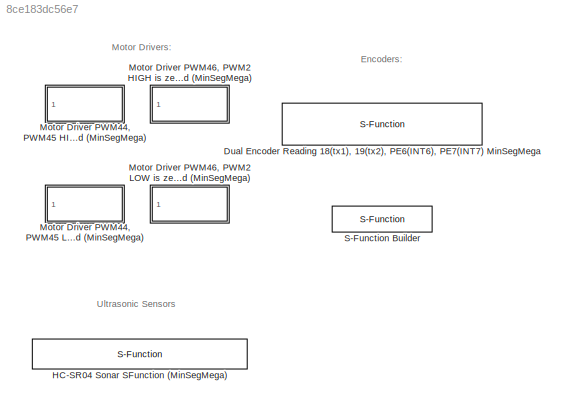
MODEL slx_8ce183dc56e7
KIND library
CONFIG AbsTol = auto
CONFIG FixedStep = auto
CONFIG MaxStep = auto
CONFIG MinStep = auto
CONFIG RelTol = 1e-3
CONFIG SampleTimeConstraint = Unconstrained
CONFIG Solver = ode45
CONFIG SolverMode = Auto
CONFIG SolverName = ode45
CONFIG StartTime = 0.0
CONFIG StopTime = 10.0
BLOCK [S-Function] Dual Encoder Reading 18(tx1), 19(tx2), PE6(INT6), PE7(INT7) MinSegMega 
  CopyFcn = set_param(gcbh,'LinkStatus','none')
  EnableBusSupport = off
  FunctionName = sf_QuadEncoder_18_19_INT6_INT7
  InitFcn = try, set_param(gcb,'FunctionName','sf_QuadEncoder_18_19_INT6_INT7'), end
  OpenFcn = sfunctionwizard(gcbh)
  Parameters = uint8([0 1]),uint8([18 6]),uint8([19 7])
  Ports = [0, 2]
  PreSaveFcn = try, set_param(gcb,'FunctionName','sf_QuadEncoder_18_19_INT6_INT7'), end
  SFunctionDeploymentMode = off
  SFunctionModules = sf_QuadEncoder_18_19_INT6_INT7_wrapper
BLOCK [S-Function] HC-SR04 Sonar SFunction (MinSegMega)
  CopyFcn = set_param(gcbh,'LinkStatus','none')
  EnableBusSupport = off
  FunctionName = sf_HCSR04_16_17
  InitFcn = try, set_param(gcb,'FunctionName','sf_HCSR04_16_17'), end
  OpenFcn = sfunctionwizard(gcbh)
  Ports = [0, 1]
  PreSaveFcn = try, set_param(gcb,'FunctionName','sf_HCSR04_16_17'), end
  SFunctionDeploymentMode = off
  SFunctionModules = sf_HCSR04_16_17_wrapper
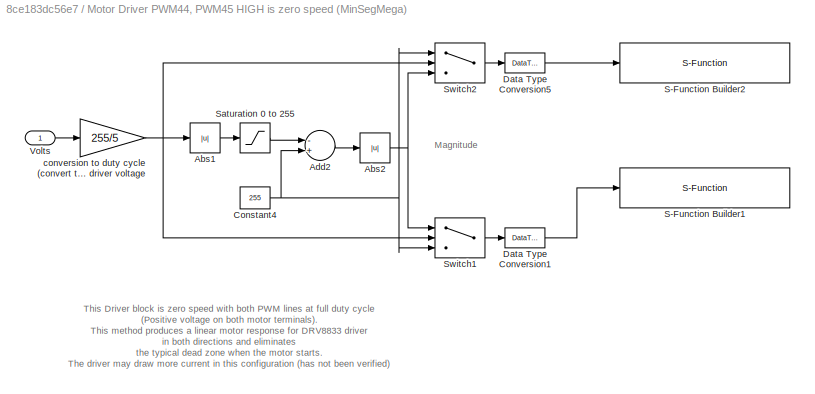
BLOCK [SubSystem] Motor Driver PWM44, PWM45 HIGH is zero speed (MinSegMega)
  Ports = [1]
  RequestExecContextInheritance = off
  Variant = off
BLOCK [Abs] Motor Driver PWM44, PWM45 HIGH is zero speed (MinSegMega)/Abs1
  SaturateOnIntegerOverflow = off
BLOCK [Abs] Motor Driver PWM44, PWM45 HIGH is zero speed (MinSegMega)/Abs2
  SaturateOnIntegerOverflow = off
BLOCK [Sum] Motor Driver PWM44, PWM45 HIGH is zero speed (MinSegMega)/Add2
  InputSameDT = off
  Inputs = -+
  OutDataTypeStr = Inherit: Inherit via internal rule
  Ports = [2, 1]
  SaturateOnIntegerOverflow = off
BLOCK [Constant] Motor Driver PWM44, PWM45 HIGH is zero speed (MinSegMega)/Constant4
  Value = 255
BLOCK [DataTypeConversion] Motor Driver PWM44, PWM45 HIGH is zero speed (MinSegMega)/Data Type Conversion1
  OutDataTypeStr = uint8
  RndMeth = Floor
  SaturateOnIntegerOverflow = off
BLOCK [DataTypeConversion] Motor Driver PWM44, PWM45 HIGH is zero speed (MinSegMega)/Data Type Conversion5
  OutDataTypeStr = uint8
  RndMeth = Floor
  SaturateOnIntegerOverflow = off
BLOCK [S-Function] Motor Driver PWM44, PWM45 HIGH is zero speed (MinSegMega)/S-Function Builder1
  CopyFcn = set_param(gcbh,'LinkStatus','none')
  EnableBusSupport = off
  FunctionName = sfcn_PWM45
  InitFcn = try, set_param(gcb,'FunctionName','sfcn_PWM45'), end
  OpenFcn = sfunctionwizard(gcbh)
  Parameters = uint8(45)
  Ports = [1]
  PreSaveFcn = try, set_param(gcb,'FunctionName','sfcn_PWM45'), end
  SFunctionDeploymentMode = off
  SFunctionModules = sfcn_PWM45_wrapper
BLOCK [S-Function] Motor Driver PWM44, PWM45 HIGH is zero speed (MinSegMega)/S-Function Builder2
  CopyFcn = set_param(gcbh,'LinkStatus','none')
  EnableBusSupport = off
  FunctionName = sfcn_PWM44
  InitFcn = try, set_param(gcb,'FunctionName','sfcn_PWM44'), end
  OpenFcn = sfunctionwizard(gcbh)
  Parameters = uint8(44)
  Ports = [1]
  PreSaveFcn = try, set_param(gcb,'FunctionName','sfcn_PWM44'), end
  SFunctionDeploymentMode = off
  SFunctionModules = sfcn_PWM44_wrapper
BLOCK [Saturate] Motor Driver PWM44, PWM45 HIGH is zero speed (MinSegMega)/Saturation 0 to 255
  InputPortMap = u0
  LowerLimit = 0
  Ports = [1, 1]
  UpperLimit = 255
BLOCK [Switch] Motor Driver PWM44, PWM45 HIGH is zero speed (MinSegMega)/Switch1
  InputSameDT = off
  SaturateOnIntegerOverflow = off
BLOCK [Switch] Motor Driver PWM44, PWM45 HIGH is zero speed (MinSegMega)/Switch2
  InputSameDT = off
  SaturateOnIntegerOverflow = off
BLOCK [Inport] Motor Driver PWM44, PWM45 HIGH is zero speed (MinSegMega)/Volts
  IconDisplay = Port number
BLOCK [Gain] Motor Driver PWM44, PWM45 HIGH is zero speed (MinSegMega)/conversion to duty cycle (convert to int) denominator is motor driver voltage
  Gain = 255/5
  OutDataTypeStr = int16
  ParamDataTypeStr = Inherit: Inherit via internal rule
  SaturateOnIntegerOverflow = off
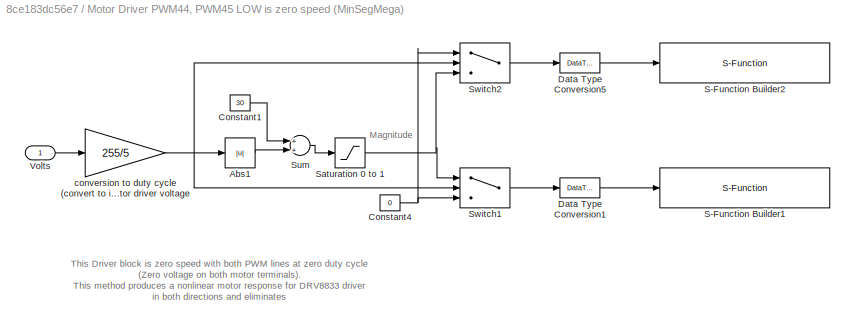
BLOCK [SubSystem] Motor Driver PWM44, PWM45 LOW is zero speed (MinSegMega)
  Ports = [1]
  RequestExecContextInheritance = off
  Variant = off
BLOCK [Abs] Motor Driver PWM44, PWM45 LOW is zero speed (MinSegMega)/Abs1
  SaturateOnIntegerOverflow = off
BLOCK [Constant] Motor Driver PWM44, PWM45 LOW is zero speed (MinSegMega)/Constant1
  Value = 30
BLOCK [Constant] Motor Driver PWM44, PWM45 LOW is zero speed (MinSegMega)/Constant4
  Value = 0
BLOCK [DataTypeConversion] Motor Driver PWM44, PWM45 LOW is zero speed (MinSegMega)/Data Type Conversion1
  OutDataTypeStr = uint8
  RndMeth = Floor
  SaturateOnIntegerOverflow = off
BLOCK [DataTypeConversion] Motor Driver PWM44, PWM45 LOW is zero speed (MinSegMega)/Data Type Conversion5
  OutDataTypeStr = uint8
  RndMeth = Floor
  SaturateOnIntegerOverflow = off
BLOCK [S-Function] Motor Driver PWM44, PWM45 LOW is zero speed (MinSegMega)/S-Function Builder1
  CopyFcn = set_param(gcbh,'LinkStatus','none')
  EnableBusSupport = off
  FunctionName = sfcn_PWM45
  InitFcn = try, set_param(gcb,'FunctionName','sfcn_PWM45'), end
  OpenFcn = sfunctionwizard(gcbh)
  Parameters = uint8(45)
  Ports = [1]
  PreSaveFcn = try, set_param(gcb,'FunctionName','sfcn_PWM45'), end
  SFunctionDeploymentMode = off
  SFunctionModules = sfcn_PWM45_wrapper
BLOCK [S-Function] Motor Driver PWM44, PWM45 LOW is zero speed (MinSegMega)/S-Function Builder2
  CopyFcn = set_param(gcbh,'LinkStatus','none')
  EnableBusSupport = off
  FunctionName = sfcn_PWM44
  InitFcn = try, set_param(gcb,'FunctionName','sfcn_PWM44'), end
  OpenFcn = sfunctionwizard(gcbh)
  Parameters = uint8(44)
  Ports = [1]
  PreSaveFcn = try, set_param(gcb,'FunctionName','sfcn_PWM44'), end
  SFunctionDeploymentMode = off
  SFunctionModules = sfcn_PWM44_wrapper
BLOCK [Saturate] Motor Driver PWM44, PWM45 LOW is zero speed (MinSegMega)/Saturation 0 to 1
  InputPortMap = u0
  LowerLimit = 0
  Ports = [1, 1]
  UpperLimit = 255
BLOCK [Sum] Motor Driver PWM44, PWM45 LOW is zero speed (MinSegMega)/Sum
  InputSameDT = off
  OutDataTypeStr = Inherit: Inherit via internal rule
  Ports = [2, 1]
  SaturateOnIntegerOverflow = off
BLOCK [Switch] Motor Driver PWM44, PWM45 LOW is zero speed (MinSegMega)/Switch1
  InputSameDT = off
  SaturateOnIntegerOverflow = off
BLOCK [Switch] Motor Driver PWM44, PWM45 LOW is zero speed (MinSegMega)/Switch2
  InputSameDT = off
  SaturateOnIntegerOverflow = off
BLOCK [Inport] Motor Driver PWM44, PWM45 LOW is zero speed (MinSegMega)/Volts
  IconDisplay = Port number
BLOCK [Gain] Motor Driver PWM44, PWM45 LOW is zero speed (MinSegMega)/conversion to duty cycle (convert to int) denominator is motor driver voltage
  Gain = 255/5
  OutDataTypeStr = int16
  ParamDataTypeStr = Inherit: Inherit via internal rule
  SaturateOnIntegerOverflow = off
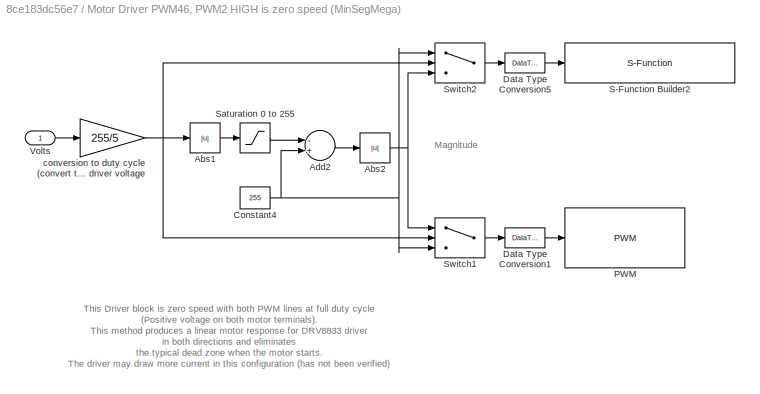
BLOCK [SubSystem] Motor Driver PWM46, PWM2 HIGH is zero speed (MinSegMega)
  Ports = [1]
  RequestExecContextInheritance = off
  Variant = off
BLOCK [Abs] Motor Driver PWM46, PWM2 HIGH is zero speed (MinSegMega)/Abs1
  SaturateOnIntegerOverflow = off
BLOCK [Abs] Motor Driver PWM46, PWM2 HIGH is zero speed (MinSegMega)/Abs2
  SaturateOnIntegerOverflow = off
BLOCK [Sum] Motor Driver PWM46, PWM2 HIGH is zero speed (MinSegMega)/Add2
  InputSameDT = off
  Inputs = -+
  OutDataTypeStr = Inherit: Inherit via internal rule
  Ports = [2, 1]
  SaturateOnIntegerOverflow = off
BLOCK [Constant] Motor Driver PWM46, PWM2 HIGH is zero speed (MinSegMega)/Constant4
  Value = 255
BLOCK [DataTypeConversion] Motor Driver PWM46, PWM2 HIGH is zero speed (MinSegMega)/Data Type Conversion1
  OutDataTypeStr = uint8
  RndMeth = Floor
  SaturateOnIntegerOverflow = off
BLOCK [DataTypeConversion] Motor Driver PWM46, PWM2 HIGH is zero speed (MinSegMega)/Data Type Conversion5
  OutDataTypeStr = uint8
  RndMeth = Floor
  SaturateOnIntegerOverflow = off
BLOCK [Reference] Motor Driver PWM46, PWM2 HIGH is zero speed (MinSegMega)/PWM  REF=arduinolib/PWM
  Ports = [1]
  SourceBlock = arduinolib/PWM
  SourceType = Arduino PWM
BLOCK [S-Function] Motor Driver PWM46, PWM2 HIGH is zero speed (MinSegMega)/S-Function Builder2
  CopyFcn = set_param(gcbh,'LinkStatus','none')
  EnableBusSupport = off
  FunctionName = sfcn_PWM46
  InitFcn = try, set_param(gcb,'FunctionName','sfcn_PWM46'), end
  OpenFcn = sfunctionwizard(gcbh)
  Parameters = uint8(46)
  Ports = [1]
  PreSaveFcn = try, set_param(gcb,'FunctionName','sfcn_PWM46'), end
  SFunctionDeploymentMode = off
  SFunctionModules = sfcn_PWM46_wrapper
BLOCK [Saturate] Motor Driver PWM46, PWM2 HIGH is zero speed (MinSegMega)/Saturation 0 to 255
  InputPortMap = u0
  LowerLimit = 0
  Ports = [1, 1]
  UpperLimit = 255
BLOCK [Switch] Motor Driver PWM46, PWM2 HIGH is zero speed (MinSegMega)/Switch1
  InputSameDT = off
  SaturateOnIntegerOverflow = off
BLOCK [Switch] Motor Driver PWM46, PWM2 HIGH is zero speed (MinSegMega)/Switch2
  InputSameDT = off
  SaturateOnIntegerOverflow = off
BLOCK [Inport] Motor Driver PWM46, PWM2 HIGH is zero speed (MinSegMega)/Volts
  IconDisplay = Port number
BLOCK [Gain] Motor Driver PWM46, PWM2 HIGH is zero speed (MinSegMega)/conversion to duty cycle (convert to int) denominator is motor driver voltage
  Gain = 255/5
  OutDataTypeStr = int16
  ParamDataTypeStr = Inherit: Inherit via internal rule
  SaturateOnIntegerOverflow = off
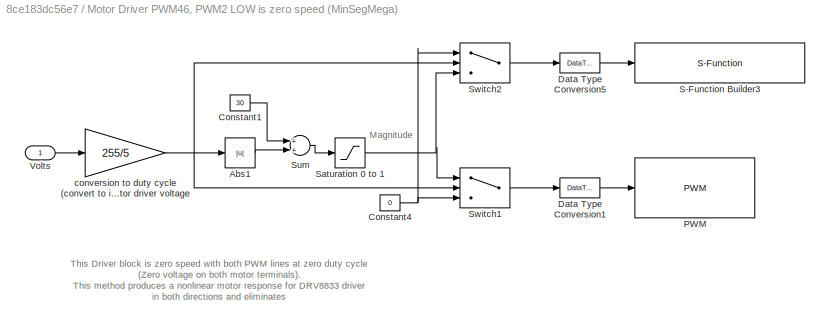
BLOCK [SubSystem] Motor Driver PWM46, PWM2 LOW is zero speed (MinSegMega)
  Ports = [1]
  RequestExecContextInheritance = off
  Variant = off
BLOCK [Abs] Motor Driver PWM46, PWM2 LOW is zero speed (MinSegMega)/Abs1
  SaturateOnIntegerOverflow = off
BLOCK [Constant] Motor Driver PWM46, PWM2 LOW is zero speed (MinSegMega)/Constant1
  Value = 30
BLOCK [Constant] Motor Driver PWM46, PWM2 LOW is zero speed (MinSegMega)/Constant4
  Value = 0
BLOCK [DataTypeConversion] Motor Driver PWM46, PWM2 LOW is zero speed (MinSegMega)/Data Type Conversion1
  OutDataTypeStr = uint8
  RndMeth = Floor
  SaturateOnIntegerOverflow = off
BLOCK [DataTypeConversion] Motor Driver PWM46, PWM2 LOW is zero speed (MinSegMega)/Data Type Conversion5
  OutDataTypeStr = uint8
  RndMeth = Floor
  SaturateOnIntegerOverflow = off
BLOCK [Reference] Motor Driver PWM46, PWM2 LOW is zero speed (MinSegMega)/PWM  REF=arduinolib/PWM
  Ports = [1]
  SourceBlock = arduinolib/PWM
  SourceType = Arduino PWM
BLOCK [S-Function] Motor Driver PWM46, PWM2 LOW is zero speed (MinSegMega)/S-Function Builder3
  CopyFcn = set_param(gcbh,'LinkStatus','none')
  EnableBusSupport = off
  FunctionName = sfcn_PWM46
  InitFcn = try, set_param(gcb,'FunctionName','sfcn_PWM46'), end
  OpenFcn = sfunctionwizard(gcbh)
  Parameters = uint8(46)
  Ports = [1]
  PreSaveFcn = try, set_param(gcb,'FunctionName','sfcn_PWM46'), end
  SFunctionDeploymentMode = off
  SFunctionModules = sfcn_PWM46_wrapper
BLOCK [Saturate] Motor Driver PWM46, PWM2 LOW is zero speed (MinSegMega)/Saturation 0 to 1
  InputPortMap = u0
  LowerLimit = 0
  Ports = [1, 1]
  UpperLimit = 255
BLOCK [Sum] Motor Driver PWM46, PWM2 LOW is zero speed (MinSegMega)/Sum
  InputSameDT = off
  OutDataTypeStr = Inherit: Inherit via internal rule
  Ports = [2, 1]
  SaturateOnIntegerOverflow = off
BLOCK [Switch] Motor Driver PWM46, PWM2 LOW is zero speed (MinSegMega)/Switch1
  InputSameDT = off
  SaturateOnIntegerOverflow = off
BLOCK [Switch] Motor Driver PWM46, PWM2 LOW is zero speed (MinSegMega)/Switch2
  InputSameDT = off
  SaturateOnIntegerOverflow = off
BLOCK [Inport] Motor Driver PWM46, PWM2 LOW is zero speed (MinSegMega)/Volts
  IconDisplay = Port number
BLOCK [Gain] Motor Driver PWM46, PWM2 LOW is zero speed (MinSegMega)/conversion to duty cycle (convert to int) denominator is motor driver voltage
  Gain = 255/5
  OutDataTypeStr = int16
  ParamDataTypeStr = Inherit: Inherit via internal rule
  SaturateOnIntegerOverflow = off
BLOCK [S-Function] S-Function Builder
  CopyFcn = set_param(gcbh,'LinkStatus','none')
  EnableBusSupport = off
  FunctionName = sfcn_A9_out
  InitFcn = try, set_param(gcb,'FunctionName','sfcn_A9_out'), end
  OpenFcn = sfunctionwizard(gcbh)
  Parameters = uint8(9)
  Ports = [1]
  PreSaveFcn = try, set_param(gcb,'FunctionName','sfcn_A9_out'), end
  SFunctionDeploymentMode = off
  SFunctionModules = sfcn_A9_out_wrapper
ANNOTATION (root): Encoders:
ANNOTATION (root): Motor Drivers:
ANNOTATION (root): Ultrasonic Sensors
ANNOTATION Motor Driver PWM44, PWM45 HIGH is zero speed (MinSegMega): Magnitude
ANNOTATION Motor Driver PWM44, PWM45 HIGH is zero speed (MinSegMega): This Driver block is zero speed with both PWM lines at full duty cycle (Positive voltage on both motor terminals). This method produces a linear motor response for DRV8833 driver in both directions and eliminates the typical dead zone when the motor starts. The driver may draw more current in this configuration (has not been verified) The SN754410 driver this has no effect, so the driver could alt...<+76ch>
ANNOTATION Motor Driver PWM44, PWM45 LOW is zero speed (MinSegMega): Magnitude
ANNOTATION Motor Driver PWM44, PWM45 LOW is zero speed (MinSegMega): This Driver block is zero speed with both PWM lines at zero duty cycle (Zero voltage on both motor terminals). This method produces a nonlinear motor response for DRV8833 driver in both directions and eliminates
ANNOTATION Motor Driver PWM46, PWM2 HIGH is zero speed (MinSegMega): Magnitude
ANNOTATION Motor Driver PWM46, PWM2 HIGH is zero speed (MinSegMega): This Driver block is zero speed with both PWM lines at full duty cycle (Positive voltage on both motor terminals). This method produces a linear motor response for DRV8833 driver in both directions and eliminates the typical dead zone when the motor starts. The driver may draw more current in this configuration (has not been verified) The SN754410 driver this has no effect, so the driver could alt...<+76ch>
ANNOTATION Motor Driver PWM46, PWM2 LOW is zero speed (MinSegMega): Magnitude
ANNOTATION Motor Driver PWM46, PWM2 LOW is zero speed (MinSegMega): This Driver block is zero speed with both PWM lines at zero duty cycle (Zero voltage on both motor terminals). This method produces a nonlinear motor response for DRV8833 driver in both directions and eliminates
LINE Motor Driver PWM44, PWM45 HIGH is zero speed (MinSegMega)/Abs1:1 -> Motor Driver PWM44, PWM45 HIGH is zero speed (MinSegMega)/Saturation 0 to 255:1
NET Motor Driver PWM44, PWM45 HIGH is zero speed (MinSegMega)/Abs2:1 -> Motor Driver PWM44, PWM45 HIGH is zero speed (MinSegMega)/Switch1:1, Motor Driver PWM44, PWM45 HIGH is zero speed (MinSegMega)/Switch2:3
LINE Motor Driver PWM44, PWM45 HIGH is zero speed (MinSegMega)/Add2:1 -> Motor Driver PWM44, PWM45 HIGH is zero speed (MinSegMega)/Abs2:1
NET Motor Driver PWM44, PWM45 HIGH is zero speed (MinSegMega)/Constant4:1 -> Motor Driver PWM44, PWM45 HIGH is zero speed (MinSegMega)/Add2:2, Motor Driver PWM44, PWM45 HIGH is zero speed (MinSegMega)/Switch1:3, Motor Driver PWM44, PWM45 HIGH is zero speed (MinSegMega)/Switch2:1
LINE Motor Driver PWM44, PWM45 HIGH is zero speed (MinSegMega)/Data Type Conversion1:1 -> Motor Driver PWM44, PWM45 HIGH is zero speed (MinSegMega)/S-Function Builder1:1
LINE Motor Driver PWM44, PWM45 HIGH is zero speed (MinSegMega)/Data Type Conversion5:1 -> Motor Driver PWM44, PWM45 HIGH is zero speed (MinSegMega)/S-Function Builder2:1
LINE Motor Driver PWM44, PWM45 HIGH is zero speed (MinSegMega)/Saturation 0 to 255:1 -> Motor Driver PWM44, PWM45 HIGH is zero speed (MinSegMega)/Add2:1
LINE Motor Driver PWM44, PWM45 HIGH is zero speed (MinSegMega)/Switch1:1 -> Motor Driver PWM44, PWM45 HIGH is zero speed (MinSegMega)/Data Type Conversion1:1
LINE Motor Driver PWM44, PWM45 HIGH is zero speed (MinSegMega)/Switch2:1 -> Motor Driver PWM44, PWM45 HIGH is zero speed (MinSegMega)/Data Type Conversion5:1
LINE Motor Driver PWM44, PWM45 HIGH is zero speed (MinSegMega)/Volts:1 -> Motor Driver PWM44, PWM45 HIGH is zero speed (MinSegMega)/conversion to duty cycle (convert to int) denominator is motor driver voltage:1
NET Motor Driver PWM44, PWM45 HIGH is zero speed (MinSegMega)/conversion to duty cycle (convert to int) denominator is motor driver voltage:1 -> Motor Driver PWM44, PWM45 HIGH is zero speed (MinSegMega)/Abs1:1, Motor Driver PWM44, PWM45 HIGH is zero speed (MinSegMega)/Switch1:2, Motor Driver PWM44, PWM45 HIGH is zero speed (MinSegMega)/Switch2:2
LINE Motor Driver PWM44, PWM45 LOW is zero speed (MinSegMega)/Abs1:1 -> Motor Driver PWM44, PWM45 LOW is zero speed (MinSegMega)/Sum:2
LINE Motor Driver PWM44, PWM45 LOW is zero speed (MinSegMega)/Constant1:1 -> Motor Driver PWM44, PWM45 LOW is zero speed (MinSegMega)/Sum:1
NET Motor Driver PWM44, PWM45 LOW is zero speed (MinSegMega)/Constant4:1 -> Motor Driver PWM44, PWM45 LOW is zero speed (MinSegMega)/Switch1:3, Motor Driver PWM44, PWM45 LOW is zero speed (MinSegMega)/Switch2:1
LINE Motor Driver PWM44, PWM45 LOW is zero speed (MinSegMega)/Data Type Conversion1:1 -> Motor Driver PWM44, PWM45 LOW is zero speed (MinSegMega)/S-Function Builder1:1
LINE Motor Driver PWM44, PWM45 LOW is zero speed (MinSegMega)/Data Type Conversion5:1 -> Motor Driver PWM44, PWM45 LOW is zero speed (MinSegMega)/S-Function Builder2:1
NET Motor Driver PWM44, PWM45 LOW is zero speed (MinSegMega)/Saturation 0 to 1:1 -> Motor Driver PWM44, PWM45 LOW is zero speed (MinSegMega)/Switch1:1, Motor Driver PWM44, PWM45 LOW is zero speed (MinSegMega)/Switch2:3
LINE Motor Driver PWM44, PWM45 LOW is zero speed (MinSegMega)/Sum:1 -> Motor Driver PWM44, PWM45 LOW is zero speed (MinSegMega)/Saturation 0 to 1:1
LINE Motor Driver PWM44, PWM45 LOW is zero speed (MinSegMega)/Switch1:1 -> Motor Driver PWM44, PWM45 LOW is zero speed (MinSegMega)/Data Type Conversion1:1
LINE Motor Driver PWM44, PWM45 LOW is zero speed (MinSegMega)/Switch2:1 -> Motor Driver PWM44, PWM45 LOW is zero speed (MinSegMega)/Data Type Conversion5:1
LINE Motor Driver PWM44, PWM45 LOW is zero speed (MinSegMega)/Volts:1 -> Motor Driver PWM44, PWM45 LOW is zero speed (MinSegMega)/conversion to duty cycle (convert to int) denominator is motor driver voltage:1
NET Motor Driver PWM44, PWM45 LOW is zero speed (MinSegMega)/conversion to duty cycle (convert to int) denominator is motor driver voltage:1 -> Motor Driver PWM44, PWM45 LOW is zero speed (MinSegMega)/Abs1:1, Motor Driver PWM44, PWM45 LOW is zero speed (MinSegMega)/Switch1:2, Motor Driver PWM44, PWM45 LOW is zero speed (MinSegMega)/Switch2:2
LINE Motor Driver PWM46, PWM2 HIGH is zero speed (MinSegMega)/Abs1:1 -> Motor Driver PWM46, PWM2 HIGH is zero speed (MinSegMega)/Saturation 0 to 255:1
NET Motor Driver PWM46, PWM2 HIGH is zero speed (MinSegMega)/Abs2:1 -> Motor Driver PWM46, PWM2 HIGH is zero speed (MinSegMega)/Switch1:1, Motor Driver PWM46, PWM2 HIGH is zero speed (MinSegMega)/Switch2:3
LINE Motor Driver PWM46, PWM2 HIGH is zero speed (MinSegMega)/Add2:1 -> Motor Driver PWM46, PWM2 HIGH is zero speed (MinSegMega)/Abs2:1
NET Motor Driver PWM46, PWM2 HIGH is zero speed (MinSegMega)/Constant4:1 -> Motor Driver PWM46, PWM2 HIGH is zero speed (MinSegMega)/Add2:2, Motor Driver PWM46, PWM2 HIGH is zero speed (MinSegMega)/Switch1:3, Motor Driver PWM46, PWM2 HIGH is zero speed (MinSegMega)/Switch2:1
LINE Motor Driver PWM46, PWM2 HIGH is zero speed (MinSegMega)/Data Type Conversion1:1 -> Motor Driver PWM46, PWM2 HIGH is zero speed (MinSegMega)/PWM:1
LINE Motor Driver PWM46, PWM2 HIGH is zero speed (MinSegMega)/Data Type Conversion5:1 -> Motor Driver PWM46, PWM2 HIGH is zero speed (MinSegMega)/S-Function Builder2:1
LINE Motor Driver PWM46, PWM2 HIGH is zero speed (MinSegMega)/Saturation 0 to 255:1 -> Motor Driver PWM46, PWM2 HIGH is zero speed (MinSegMega)/Add2:1
LINE Motor Driver PWM46, PWM2 HIGH is zero speed (MinSegMega)/Switch1:1 -> Motor Driver PWM46, PWM2 HIGH is zero speed (MinSegMega)/Data Type Conversion1:1
LINE Motor Driver PWM46, PWM2 HIGH is zero speed (MinSegMega)/Switch2:1 -> Motor Driver PWM46, PWM2 HIGH is zero speed (MinSegMega)/Data Type Conversion5:1
LINE Motor Driver PWM46, PWM2 HIGH is zero speed (MinSegMega)/Volts:1 -> Motor Driver PWM46, PWM2 HIGH is zero speed (MinSegMega)/conversion to duty cycle (convert to int) denominator is motor driver voltage:1
NET Motor Driver PWM46, PWM2 HIGH is zero speed (MinSegMega)/conversion to duty cycle (convert to int) denominator is motor driver voltage:1 -> Motor Driver PWM46, PWM2 HIGH is zero speed (MinSegMega)/Abs1:1, Motor Driver PWM46, PWM2 HIGH is zero speed (MinSegMega)/Switch1:2, Motor Driver PWM46, PWM2 HIGH is zero speed (MinSegMega)/Switch2:2
LINE Motor Driver PWM46, PWM2 LOW is zero speed (MinSegMega)/Abs1:1 -> Motor Driver PWM46, PWM2 LOW is zero speed (MinSegMega)/Sum:2
LINE Motor Driver PWM46, PWM2 LOW is zero speed (MinSegMega)/Constant1:1 -> Motor Driver PWM46, PWM2 LOW is zero speed (MinSegMega)/Sum:1
NET Motor Driver PWM46, PWM2 LOW is zero speed (MinSegMega)/Constant4:1 -> Motor Driver PWM46, PWM2 LOW is zero speed (MinSegMega)/Switch1:3, Motor Driver PWM46, PWM2 LOW is zero speed (MinSegMega)/Switch2:1
LINE Motor Driver PWM46, PWM2 LOW is zero speed (MinSegMega)/Data Type Conversion1:1 -> Motor Driver PWM46, PWM2 LOW is zero speed (MinSegMega)/PWM:1
LINE Motor Driver PWM46, PWM2 LOW is zero speed (MinSegMega)/Data Type Conversion5:1 -> Motor Driver PWM46, PWM2 LOW is zero speed (MinSegMega)/S-Function Builder3:1
NET Motor Driver PWM46, PWM2 LOW is zero speed (MinSegMega)/Saturation 0 to 1:1 -> Motor Driver PWM46, PWM2 LOW is zero speed (MinSegMega)/Switch1:1, Motor Driver PWM46, PWM2 LOW is zero speed (MinSegMega)/Switch2:3
LINE Motor Driver PWM46, PWM2 LOW is zero speed (MinSegMega)/Sum:1 -> Motor Driver PWM46, PWM2 LOW is zero speed (MinSegMega)/Saturation 0 to 1:1
LINE Motor Driver PWM46, PWM2 LOW is zero speed (MinSegMega)/Switch1:1 -> Motor Driver PWM46, PWM2 LOW is zero speed (MinSegMega)/Data Type Conversion1:1
LINE Motor Driver PWM46, PWM2 LOW is zero speed (MinSegMega)/Switch2:1 -> Motor Driver PWM46, PWM2 LOW is zero speed (MinSegMega)/Data Type Conversion5:1
LINE Motor Driver PWM46, PWM2 LOW is zero speed (MinSegMega)/Volts:1 -> Motor Driver PWM46, PWM2 LOW is zero speed (MinSegMega)/conversion to duty cycle (convert to int) denominator is motor driver voltage:1
NET Motor Driver PWM46, PWM2 LOW is zero speed (MinSegMega)/conversion to duty cycle (convert to int) denominator is motor driver voltage:1 -> Motor Driver PWM46, PWM2 LOW is zero speed (MinSegMega)/Abs1:1, Motor Driver PWM46, PWM2 LOW is zero speed (MinSegMega)/Switch1:2, Motor Driver PWM46, PWM2 LOW is zero speed (MinSegMega)/Switch2:2
note: NET lines group one-source signal fan-out (src -> all destinations, sorted); 1:1 wires keep LINE
